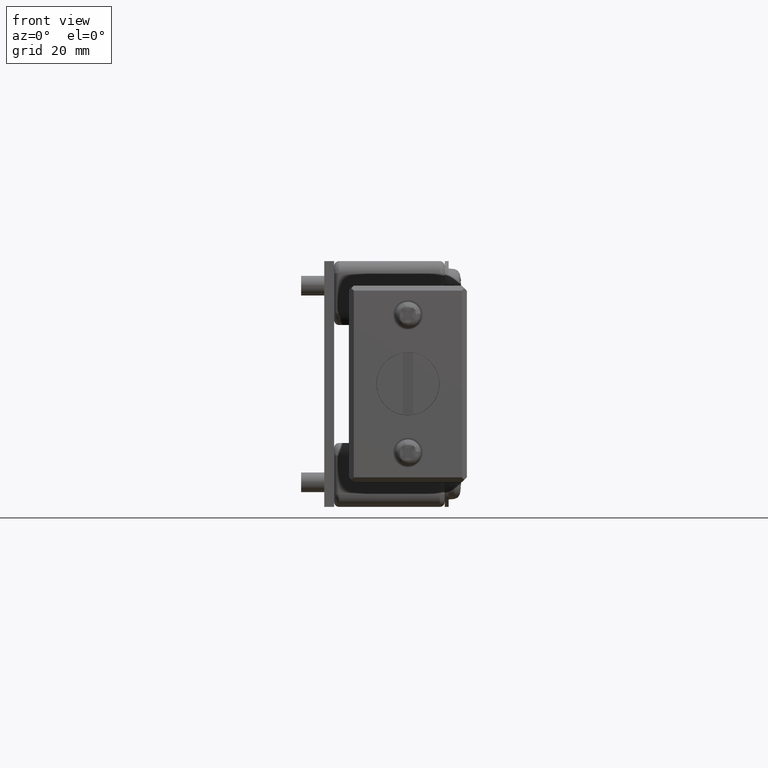
[diagram: clean part render]
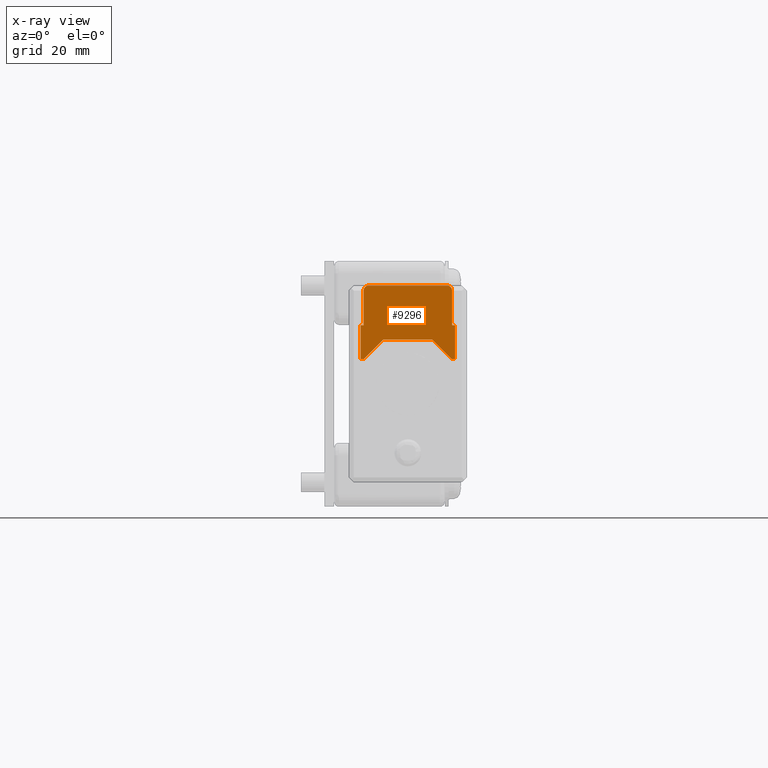
[diagram: x-ray — body ghosted, one internal face saturated and labeled with its STEP entity id]
A machine part, front view, then the same camera in x-ray: the body is ghosted and one INTERNAL B-rep face — a face not visible from any outside direction — is saturated and labeled: STEP entity #9296.
In plain terms, the highlighted face is a freeform B-spline surface patch.
Its self-contained STEP definition (entity closure, byte-faithful):
#6797=CARTESIAN_POINT('',(5.0,-1.495376000524118,14.117688644552020));
#6798=VERTEX_POINT('',#6797);
#6804=CARTESIAN_POINT('',(5.0,0.0,15.500000000000000));
#6805=VERTEX_POINT('',#6804);
#6806=CARTESIAN_POINT('',(5.0,0.0,15.500000000000000));
#6807=CARTESIAN_POINT('',(5.0,-1.386585735701014,15.499999999999995));
#6808=CARTESIAN_POINT('',(5.0,-1.495376000524118,14.117688644552027));
#6816=(BOUNDED_CURVE()B_SPLINE_CURVE(2,(#6806,#6807,#6808),.UNSPECIFIED.,.F.,.U.)B_SPLINE_CURVE_WITH_KNOTS((3,3),(0.0,0.236331300412607),.UNSPECIFIED.)CURVE()GEOMETRIC_REPRESENTATION_ITEM()RATIONAL_B_SPLINE_CURVE((1.0,0.723120658863131,0.969723355712358))REPRESENTATION_ITEM(''));
#6817=EDGE_CURVE('',#6805,#6798,#6816,.T.);
#6819=CARTESIAN_POINT('',(4.999999999999999,1.495376000524118,13.882311355447980));
#6820=VERTEX_POINT('',#6819);
#6821=CARTESIAN_POINT('',(4.999999999999999,1.495376000524119,13.882311355447984));
#6822=CARTESIAN_POINT('',(5.000000000000001,1.500000000000000,13.941064838523786));
#6823=CARTESIAN_POINT('',(5.0,1.500000000000000,14.0));
#6824=CARTESIAN_POINT('',(5.000000000000001,1.500000000000000,15.500000000000004));
#6825=CARTESIAN_POINT('',(5.0,0.0,15.500000000000000));
#6833=(BOUNDED_CURVE()B_SPLINE_CURVE(2,(#6821,#6822,#6823,#6824,#6825),.UNSPECIFIED.,.F.,.U.)B_SPLINE_CURVE_WITH_KNOTS((3,2,3),(0.736331300412607,0.750000000000000,1.0),.UNSPECIFIED.)CURVE()GEOMETRIC_REPRESENTATION_ITEM()RATIONAL_B_SPLINE_CURVE((0.969723355712359,0.983986122323417,1.0,0.707106781186548,1.0))REPRESENTATION_ITEM(''));
#6834=EDGE_CURVE('',#6820,#6805,#6833,.T.);
#6910=CARTESIAN_POINT('',(5.0,0.0,12.500000000000000));
#6911=VERTEX_POINT('',#6910);
#6912=CARTESIAN_POINT('',(5.0,0.0,12.500000000000000));
#6913=CARTESIAN_POINT('',(5.0,1.386585735701014,12.499999999999998));
#6914=CARTESIAN_POINT('',(4.999999999999999,1.495376000524118,13.882311355447975));
#6922=(BOUNDED_CURVE()B_SPLINE_CURVE(2,(#6912,#6913,#6914),.UNSPECIFIED.,.F.,.U.)B_SPLINE_CURVE_WITH_KNOTS((3,3),(0.500000000000000,0.736331300412607),.UNSPECIFIED.)CURVE()GEOMETRIC_REPRESENTATION_ITEM()RATIONAL_B_SPLINE_CURVE((1.0,0.723120658863131,0.969723355712358))REPRESENTATION_ITEM(''));
#6923=EDGE_CURVE('',#6911,#6820,#6922,.T.);
#6925=CARTESIAN_POINT('',(4.999999999999999,-1.495376000524118,14.117688644552027));
#6926=CARTESIAN_POINT('',(5.0,-1.500000000000000,14.058935161476221));
#6927=CARTESIAN_POINT('',(5.0,-1.500000000000000,14.0));
#6928=CARTESIAN_POINT('',(5.000000000000001,-1.500000000000000,12.500000000000000));
#6929=CARTESIAN_POINT('',(5.0,0.0,12.500000000000000));
#6937=(BOUNDED_CURVE()B_SPLINE_CURVE(2,(#6925,#6926,#6927,#6928,#6929),.UNSPECIFIED.,.F.,.U.)B_SPLINE_CURVE_WITH_KNOTS((3,2,3),(0.236331300412607,0.250000000000000,0.500000000000000),.UNSPECIFIED.)CURVE()GEOMETRIC_REPRESENTATION_ITEM()RATIONAL_B_SPLINE_CURVE((0.969723355712358,0.983986122323417,1.0,0.707106781186548,1.0))REPRESENTATION_ITEM(''));
#6938=EDGE_CURVE('',#6798,#6911,#6937,.T.);
#7278=CARTESIAN_POINT('',(5.0,9.599991000000001,11.950004000000000));
#7279=VERTEX_POINT('',#7278);
#7300=CARTESIAN_POINT('',(5.0,9.599991000000001,5.0));
#7301=VERTEX_POINT('',#7300);
#7315=CARTESIAN_POINT('',(5.0,9.599991000000001,11.950004000000000));
#7316=CARTESIAN_POINT('',(5.0,9.599991000000001,5.0));
#7317=QUASI_UNIFORM_CURVE('',1,(#7315,#7316),.UNSPECIFIED.,.F.,.U.);
#7318=EDGE_CURVE('',#7279,#7301,#7317,.T.);
#7398=CARTESIAN_POINT('',(5.0,-9.600005999999999,11.950004000000000));
#7399=VERTEX_POINT('',#7398);
#7415=CARTESIAN_POINT('',(5.0,-9.600006000000109,5.0));
#7416=VERTEX_POINT('',#7415);
#7417=CARTESIAN_POINT('',(5.0,-9.600006000000109,5.0));
#7418=CARTESIAN_POINT('',(5.0,-9.600005999999999,11.950004000000000));
#7419=QUASI_UNIFORM_CURVE('',1,(#7417,#7418),.UNSPECIFIED.,.F.,.U.);
#7420=EDGE_CURVE('',#7416,#7399,#7419,.T.);
#7542=CARTESIAN_POINT('',(5.0,5.0,9.0));
#7543=VERTEX_POINT('',#7542);
#7544=CARTESIAN_POINT('',(5.0,-5.0,9.0));
#7545=VERTEX_POINT('',#7544);
#7546=CARTESIAN_POINT('',(5.0,5.0,9.0));
#7547=CARTESIAN_POINT('',(5.0,-5.0,9.0));
#7548=QUASI_UNIFORM_CURVE('',1,(#7546,#7547),.UNSPECIFIED.,.F.,.U.);
#7549=EDGE_CURVE('',#7543,#7545,#7548,.T.);
#7578=CARTESIAN_POINT('',(5.0,-8.999999999999890,5.0));
#7579=VERTEX_POINT('',#7578);
#7580=CARTESIAN_POINT('',(5.0,-5.0,9.0));
#7581=CARTESIAN_POINT('',(5.0,-8.999999999999890,5.0));
#7582=QUASI_UNIFORM_CURVE('',1,(#7580,#7581),.UNSPECIFIED.,.F.,.U.);
#7583=EDGE_CURVE('',#7545,#7579,#7582,.T.);
#7613=CARTESIAN_POINT('',(5.0,9.000000000000108,5.0));
#7614=VERTEX_POINT('',#7613);
#7615=CARTESIAN_POINT('',(5.0,9.000000000000108,5.0));
#7616=CARTESIAN_POINT('',(5.0,5.0,9.0));
#7617=QUASI_UNIFORM_CURVE('',1,(#7615,#7616),.UNSPECIFIED.,.F.,.U.);
#7618=EDGE_CURVE('',#7614,#7543,#7617,.T.);
#7729=CARTESIAN_POINT('',(5.0,-7.999999999999889,20.0));
#7730=VERTEX_POINT('',#7729);
#7731=CARTESIAN_POINT('',(5.0,-8.999999999999890,19.0));
#7732=VERTEX_POINT('',#7731);
#7733=CARTESIAN_POINT('',(5.0,-7.999999999999889,20.0));
#7734=CARTESIAN_POINT('',(5.000000000000001,-8.999999999999890,19.999999999999996));
#7735=CARTESIAN_POINT('',(5.0,-8.999999999999890,19.0));
#7743=(BOUNDED_CURVE()B_SPLINE_CURVE(2,(#7733,#7734,#7735),.UNSPECIFIED.,.F.,.U.)CURVE()GEOMETRIC_REPRESENTATION_ITEM()QUASI_UNIFORM_CURVE()RATIONAL_B_SPLINE_CURVE((1.0,0.707106781186548,1.0))REPRESENTATION_ITEM(''));
#7744=EDGE_CURVE('',#7730,#7732,#7743,.T.);
#7781=CARTESIAN_POINT('',(5.0,-8.999999999999890,11.950004000000000));
#7782=VERTEX_POINT('',#7781);
#7783=CARTESIAN_POINT('',(5.0,-8.999999999999890,11.950004000000000));
#7784=CARTESIAN_POINT('',(5.0,-8.999999999999890,19.0));
#7785=QUASI_UNIFORM_CURVE('',1,(#7783,#7784),.UNSPECIFIED.,.F.,.U.);
#7786=EDGE_CURVE('',#7782,#7732,#7785,.T.);
#7818=CARTESIAN_POINT('',(5.0,9.0,19.0));
#7819=VERTEX_POINT('',#7818);
#7820=CARTESIAN_POINT('',(5.0,8.0,20.0));
#7821=VERTEX_POINT('',#7820);
#7822=CARTESIAN_POINT('',(5.0,9.000000000000002,19.0));
#7823=CARTESIAN_POINT('',(5.000000000000001,9.000000000000002,19.999999999999996));
#7824=CARTESIAN_POINT('',(5.0,8.0,20.0));
#7832=(BOUNDED_CURVE()B_SPLINE_CURVE(2,(#7822,#7823,#7824),.UNSPECIFIED.,.F.,.U.)CURVE()GEOMETRIC_REPRESENTATION_ITEM()QUASI_UNIFORM_CURVE()RATIONAL_B_SPLINE_CURVE((1.0,0.707106781186548,1.0))REPRESENTATION_ITEM(''));
#7833=EDGE_CURVE('',#7819,#7821,#7832,.T.);
#7870=CARTESIAN_POINT('',(5.0,9.000000000000108,11.950004000000000));
#7871=VERTEX_POINT('',#7870);
#7872=CARTESIAN_POINT('',(5.0,9.0,19.0));
#7873=CARTESIAN_POINT('',(5.0,9.000000000000108,11.950004000000000));
#7874=QUASI_UNIFORM_CURVE('',1,(#7872,#7873),.UNSPECIFIED.,.F.,.U.);
#7875=EDGE_CURVE('',#7819,#7871,#7874,.T.);
#8662=CARTESIAN_POINT('',(5.0,-9.600005999999999,11.950004000000000));
#8663=CARTESIAN_POINT('',(5.0,-8.999999999999890,11.950004000000000));
#8664=QUASI_UNIFORM_CURVE('',1,(#8662,#8663),.UNSPECIFIED.,.F.,.U.);
#8665=EDGE_CURVE('',#7399,#7782,#8664,.T.);
#8698=CARTESIAN_POINT('',(5.0,9.000000000000108,11.950004000000000));
#8699=CARTESIAN_POINT('',(5.0,9.599991000000001,11.950004000000000));
#8700=QUASI_UNIFORM_CURVE('',1,(#8698,#8699),.UNSPECIFIED.,.F.,.U.);
#8701=EDGE_CURVE('',#7871,#7279,#8700,.T.);
#8972=CARTESIAN_POINT('',(5.0,8.0,20.0));
#8973=CARTESIAN_POINT('',(5.0,-7.999999999999889,20.0));
#8974=QUASI_UNIFORM_CURVE('',1,(#8972,#8973),.UNSPECIFIED.,.F.,.U.);
#8975=EDGE_CURVE('',#7821,#7730,#8974,.T.);
#9167=CARTESIAN_POINT('',(5.0,9.599991000000001,5.0));
#9168=CARTESIAN_POINT('',(5.0,9.000000000000108,5.0));
#9169=QUASI_UNIFORM_CURVE('',1,(#9167,#9168),.UNSPECIFIED.,.F.,.U.);
#9170=EDGE_CURVE('',#7301,#7614,#9169,.T.);
#9185=CARTESIAN_POINT('',(5.0,-8.999999999999890,5.0));
#9186=CARTESIAN_POINT('',(5.0,-9.600006000000109,5.0));
#9187=QUASI_UNIFORM_CURVE('',1,(#9185,#9186),.UNSPECIFIED.,.F.,.U.);
#9188=EDGE_CURVE('',#7579,#7416,#9187,.T.);
#9269=CARTESIAN_POINT('',(5.0,-10.559045993172630,4.250750029072909));
#9270=CARTESIAN_POINT('',(5.0,-10.559045993172630,20.749250373258452));
#9271=CARTESIAN_POINT('',(5.0,10.559031336495231,4.250750029072909));
#9272=CARTESIAN_POINT('',(5.0,10.559031336495231,20.749250373258452));
#9273=B_SPLINE_SURFACE_WITH_KNOTS('',1,1,((#9269,#9271),(#9270,#9272)),.UNSPECIFIED.,.F.,.F.,.U.,(2,2),(2,2),(0.0,16.498500344185540),(0.0,21.118077329667859),.UNSPECIFIED.);
#9274=ORIENTED_EDGE('',*,*,#8701,.T.);
#9275=ORIENTED_EDGE('',*,*,#7318,.T.);
#9276=ORIENTED_EDGE('',*,*,#9170,.T.);
#9277=ORIENTED_EDGE('',*,*,#7618,.T.);
#9278=ORIENTED_EDGE('',*,*,#7549,.T.);
#9279=ORIENTED_EDGE('',*,*,#7583,.T.);
#9280=ORIENTED_EDGE('',*,*,#9188,.T.);
#9281=ORIENTED_EDGE('',*,*,#7420,.T.);
#9282=ORIENTED_EDGE('',*,*,#8665,.T.);
#9283=ORIENTED_EDGE('',*,*,#7786,.T.);
#9284=ORIENTED_EDGE('',*,*,#7744,.F.);
#9285=ORIENTED_EDGE('',*,*,#8975,.F.);
#9286=ORIENTED_EDGE('',*,*,#7833,.F.);
#9287=ORIENTED_EDGE('',*,*,#7875,.T.);
#9288=EDGE_LOOP('',(#9274,#9275,#9276,#9277,#9278,#9279,#9280,#9281,#9282,#9283,#9284,#9285,#9286,#9287));
#9289=FACE_OUTER_BOUND('',#9288,.T.);
#9290=ORIENTED_EDGE('',*,*,#6923,.T.);
#9291=ORIENTED_EDGE('',*,*,#6834,.T.);
#9292=ORIENTED_EDGE('',*,*,#6817,.T.);
#9293=ORIENTED_EDGE('',*,*,#6938,.T.);
#9294=EDGE_LOOP('',(#9290,#9291,#9292,#9293));
#9295=FACE_BOUND('',#9294,.T.);
#9296=ADVANCED_FACE('',(#9289,#9295),#9273,.T.);